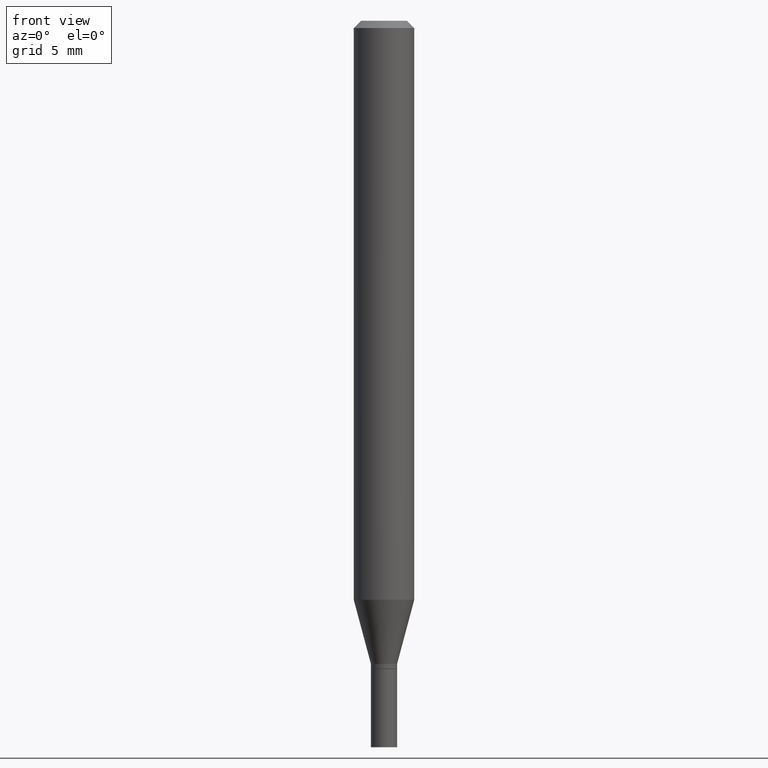
[diagram: clean part render]
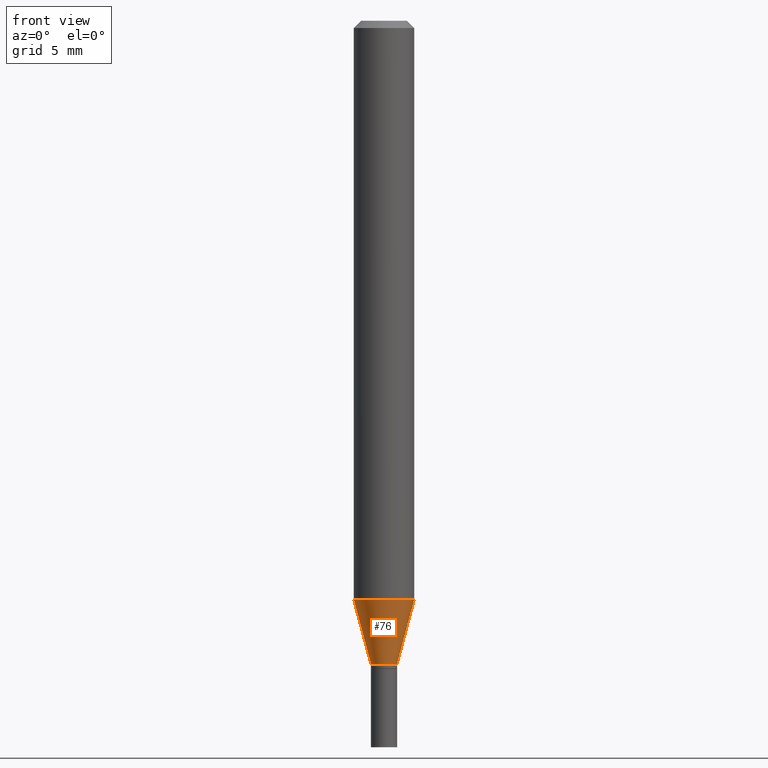
[diagram: same view with one face highlighted and labeled with its STEP entity id]
A machine part, front view. The second image highlights one B-rep face of the part: STEP entity #76.
In plain terms, the highlighted conical surface has half-angle 15 deg.
Its self-contained STEP definition (entity closure, byte-faithful):
#9 = ORIENTED_EDGE ( 'NONE', *, *, #145, .T. ) ;
#14 = DIRECTION ( 'NONE',  ( 1.000000000000000000, -6.982962677686279332E-15, 0.000000000000000000 ) ) ;
#24 = CARTESIAN_POINT ( 'NONE',  ( 3.247582574613861342E-29, -4.636687217983698072E-15, -1.328000000000000069 ) ) ;
#26 = LINE ( 'NONE', #110, #424 ) ;
#29 = DIRECTION ( 'NONE',  ( -2.445468806185136597E-29, 3.491481338843145583E-15, 1.000000000000000000 ) ) ;
#59 = CARTESIAN_POINT ( 'NONE',  ( -0.02699999999999992684, -4.444840679328471640E-15, -1.328000000000000069 ) ) ;
#61 = AXIS2_PLACEMENT_3D ( 'NONE', #367, #29, #306 ) ;
#76 = ADVANCED_FACE ( 'NONE', ( #401 ), #311, .T. ) ;
#82 = CARTESIAN_POINT ( 'NONE',  ( -0.02699999999999992684, -4.087429996664271131E-15, -1.328000000000000069 ) ) ;
#91 = EDGE_LOOP ( 'NONE', ( #105, #9, #142, #349 ) ) ;
#105 = ORIENTED_EDGE ( 'NONE', *, *, #139, .F. ) ;
#110 = CARTESIAN_POINT ( 'NONE',  ( 0.02699999999999992684, -4.825227210281226768E-15, -1.328000000000000069 ) ) ;
#115 = EDGE_CURVE ( 'NONE', #389, #161, #26, .T. ) ;
#139 = EDGE_CURVE ( 'NONE', #386, #246, #335, .T. ) ;
#141 = CIRCLE ( 'NONE', #351, 0.02699999999999992684 ) ;
#142 = ORIENTED_EDGE ( 'NONE', *, *, #115, .T. ) ;
#145 = EDGE_CURVE ( 'NONE', #386, #389, #141, .T. ) ;
#155 = DIRECTION ( 'NONE',  ( 1.000000000000000000, -6.982962677686279332E-15, 0.000000000000000000 ) ) ;
#160 = EDGE_CURVE ( 'NONE', #246, #161, #251, .T. ) ;
#161 = VERTEX_POINT ( 'NONE', #270 ) ;
#166 = VECTOR ( 'NONE', #339, 39.37007874015748854 ) ;
#173 = AXIS2_PLACEMENT_3D ( 'NONE', #265, #365, #155 ) ;
#211 = DIRECTION ( 'NONE',  ( 0.2588190451025207395, 1.565188264969626109E-15, 0.9659258262890682012 ) ) ;
#246 = VERTEX_POINT ( 'NONE', #463 ) ;
#251 = CIRCLE ( 'NONE', #61, 0.06250000000000000000 ) ;
#265 = CARTESIAN_POINT ( 'NONE',  ( 3.247582574613861342E-29, -4.636687217983698072E-15, -1.328000000000000069 ) ) ;
#270 = CARTESIAN_POINT ( 'NONE',  ( 0.06250000000000000000, -4.610543691205524908E-15, -1.195512196331304677 ) ) ;
#306 = DIRECTION ( 'NONE',  ( 1.000000000000000000, -6.982962677686262766E-15, 0.000000000000000000 ) ) ;
#311 = CONICAL_SURFACE ( 'NONE', #173, 0.02699999999999992684, 0.2617993877991494633 ) ;
#335 = LINE ( 'NONE', #59, #166 ) ;
#339 = DIRECTION ( 'NONE',  ( -0.2588190451025207395, 5.211531920934546309E-15, 0.9659258262890682012 ) ) ;
#349 = ORIENTED_EDGE ( 'NONE', *, *, #160, .F. ) ;
#350 = CARTESIAN_POINT ( 'NONE',  ( 0.02699999999999992684, -4.825227210281226768E-15, -1.328000000000000069 ) ) ;
#351 = AXIS2_PLACEMENT_3D ( 'NONE', #24, #362, #14 ) ;
#362 = DIRECTION ( 'NONE',  ( -2.445468806185136597E-29, 3.491481338843145583E-15, 1.000000000000000000 ) ) ;
#365 = DIRECTION ( 'NONE',  ( -2.445468806185136597E-29, 3.491481338843145583E-15, 1.000000000000000000 ) ) ;
#367 = CARTESIAN_POINT ( 'NONE',  ( 2.923587783542086622E-29, -4.174108523850133238E-15, -1.195512196331304677 ) ) ;
#386 = VERTEX_POINT ( 'NONE', #82 ) ;
#389 = VERTEX_POINT ( 'NONE', #350 ) ;
#401 = FACE_OUTER_BOUND ( 'NONE', #91, .T. ) ;
#424 = VECTOR ( 'NONE', #211, 39.37007874015748854 ) ;
#463 = CARTESIAN_POINT ( 'NONE',  ( -0.06250000000000000000, -3.730019314000071411E-15, -1.195512196331304677 ) ) ;